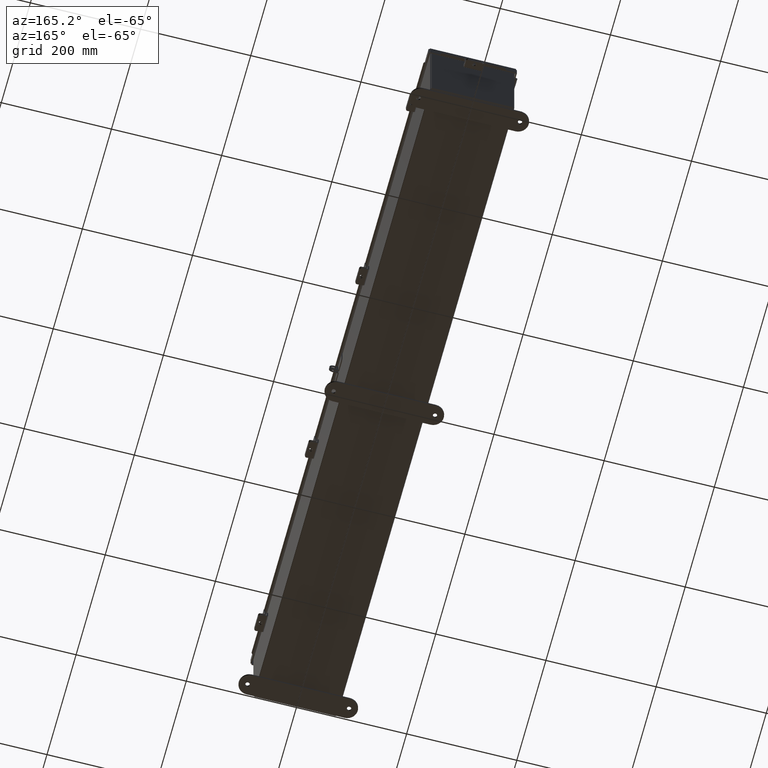
[diagram: clean part render]
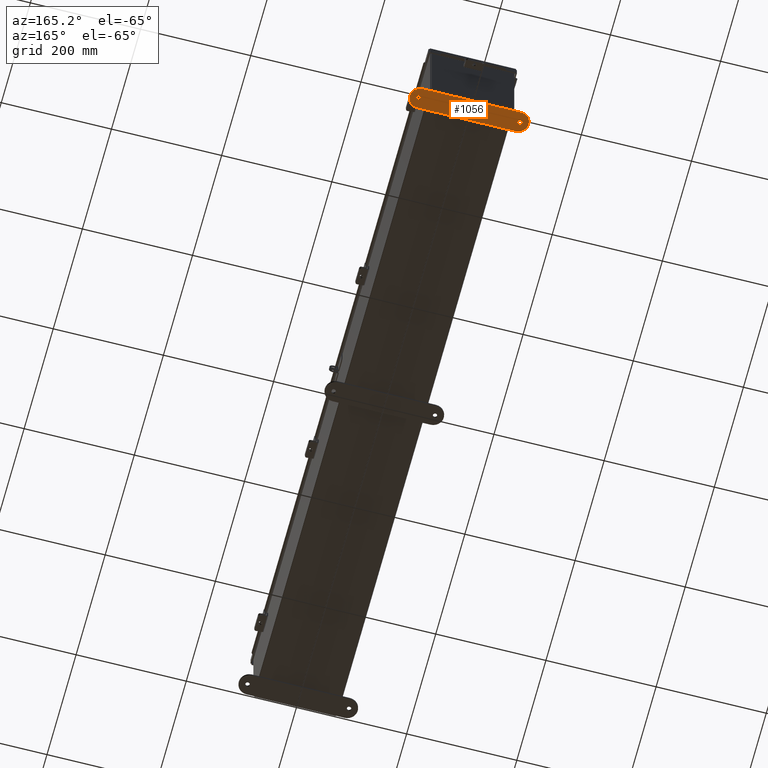
[diagram: same view with one face highlighted and labeled with its STEP entity id]
A machine part, auxiliary view. The second image highlights one B-rep face of the part: STEP entity #1056.
In plain terms, the highlighted planar face has unit normal (0, 0, 1).
Its self-contained STEP definition (entity closure, byte-faithful):
#1056 = ADVANCED_FACE ( 'NONE', ( #13943, #7277, #6414 ), #28019, .F. ) ;
#1322 = DIRECTION ( 'NONE',  ( 0.0000000000000000000, 0.0000000000000000000, 1.000000000000000000 ) ) ;
#1604 = CIRCLE ( 'NONE', #2613, 0.7500000000000010000 ) ;
#2015 = CARTESIAN_POINT ( 'NONE',  ( 4.250000000000000900, 0.4120940649496110900, 0.0000000000000000000 ) ) ;
#2552 = VERTEX_POINT ( 'NONE', #20107 ) ;
#2568 = CARTESIAN_POINT ( 'NONE',  ( 3.500000000000000000, 0.4120940649496110900, 0.0000000000000000000 ) ) ;
#2613 = AXIS2_PLACEMENT_3D ( 'NONE', #6046, #25940, #8880 ) ;
#2972 = CIRCLE ( 'NONE', #25456, 0.1564999999999992800 ) ;
#3594 = VERTEX_POINT ( 'NONE', #34502 ) ;
#4854 = VECTOR ( 'NONE', #13357, 39.37007874015748100 ) ;
#5367 = CARTESIAN_POINT ( 'NONE',  ( 3.625000000000000400, 0.4120940649496067100, 0.0000000000000000000 ) ) ;
#5418 = DIRECTION ( 'NONE',  ( -1.000000000000000000, 0.0000000000000000000, 0.0000000000000000000 ) ) ;
#6046 = CARTESIAN_POINT ( 'NONE',  ( 3.500000000000000000, 0.4120940649496110900, 0.0000000000000000000 ) ) ;
#6414 = FACE_BOUND ( 'NONE', #22290, .T. ) ;
#6963 = ORIENTED_EDGE ( 'NONE', *, *, #8490, .F. ) ;
#7277 = FACE_BOUND ( 'NONE', #24081, .T. ) ;
#7288 = DIRECTION ( 'NONE',  ( -1.000000000000000000, -1.170791997284684700E-016, 0.0000000000000000000 ) ) ;
#8198 = DIRECTION ( 'NONE',  ( -1.000000000000000000, 0.0000000000000000000, 0.0000000000000000000 ) ) ;
#8490 = EDGE_CURVE ( 'NONE', #13827, #25999, #32790, .T. ) ;
#8545 = CIRCLE ( 'NONE', #17494, 0.1564999999999992800 ) ;
#8880 = DIRECTION ( 'NONE',  ( -1.000000000000000000, 0.0000000000000000000, 0.0000000000000000000 ) ) ;
#9381 = CARTESIAN_POINT ( 'NONE',  ( -3.499999999999998700, 1.162094064949611600, 0.0000000000000000000 ) ) ;
#9396 = ORIENTED_EDGE ( 'NONE', *, *, #35020, .T. ) ;
#10519 = CARTESIAN_POINT ( 'NONE',  ( -3.499999999999998700, -0.3379059350503894100, 0.0000000000000000000 ) ) ;
#11016 = ORIENTED_EDGE ( 'NONE', *, *, #34580, .T. ) ;
#11172 = DIRECTION ( 'NONE',  ( 0.0000000000000000000, 0.0000000000000000000, -1.000000000000000000 ) ) ;
#11921 = CIRCLE ( 'NONE', #25010, 0.7500000000000010000 ) ;
#12362 = DIRECTION ( 'NONE',  ( 0.0000000000000000000, 0.0000000000000000000, 1.000000000000000000 ) ) ;
#12564 = DIRECTION ( 'NONE',  ( 0.0000000000000000000, 0.0000000000000000000, 1.000000000000000000 ) ) ;
#12627 = DIRECTION ( 'NONE',  ( 0.0000000000000000000, 0.0000000000000000000, 1.000000000000000000 ) ) ;
#12663 = VECTOR ( 'NONE', #7288, 39.37007874015748100 ) ;
#13357 = DIRECTION ( 'NONE',  ( 1.000000000000000000, -1.170791997284684700E-016, 0.0000000000000000000 ) ) ;
#13639 = EDGE_LOOP ( 'NONE', ( #35675, #27613, #9396, #28541, #15822 ) ) ;
#13799 = CARTESIAN_POINT ( 'NONE',  ( 3.499999999999998700, 1.162094064949611600, 0.0000000000000000000 ) ) ;
#13827 = VERTEX_POINT ( 'NONE', #17760 ) ;
#13943 = FACE_OUTER_BOUND ( 'NONE', #13639, .T. ) ;
#15822 = ORIENTED_EDGE ( 'NONE', *, *, #32845, .T. ) ;
#16329 = VERTEX_POINT ( 'NONE', #9381 ) ;
#17311 = ORIENTED_EDGE ( 'NONE', *, *, #27717, .T. ) ;
#17494 = AXIS2_PLACEMENT_3D ( 'NONE', #5367, #25241, #8198 ) ;
#17760 = CARTESIAN_POINT ( 'NONE',  ( -3.781499999999999400, 0.4120940649496067100, 0.0000000000000000000 ) ) ;
#17830 = VERTEX_POINT ( 'NONE', #26324 ) ;
#18080 = AXIS2_PLACEMENT_3D ( 'NONE', #28231, #11172, #31111 ) ;
#18371 = CARTESIAN_POINT ( 'NONE',  ( 3.500000000000000000, 0.4120940649496110900, 0.0000000000000000000 ) ) ;
#19393 = CIRCLE ( 'NONE', #18080, 0.1564999999999992800 ) ;
#19504 = CIRCLE ( 'NONE', #26905, 0.7499999999999998900 ) ;
#20107 = CARTESIAN_POINT ( 'NONE',  ( 3.499999999999998700, -0.3379059350503894100, 0.0000000000000000000 ) ) ;
#21230 = DIRECTION ( 'NONE',  ( -1.000000000000000000, 0.0000000000000000000, 0.0000000000000000000 ) ) ;
#22290 = EDGE_LOOP ( 'NONE', ( #11016, #17311 ) ) ;
#22434 = DIRECTION ( 'NONE',  ( 0.0000000000000000000, 0.0000000000000000000, -1.000000000000000000 ) ) ;
#22593 = AXIS2_PLACEMENT_3D ( 'NONE', #29644, #12564, #32507 ) ;
#22925 = AXIS2_PLACEMENT_3D ( 'NONE', #2568, #22434, #5418 ) ;
#24081 = EDGE_LOOP ( 'NONE', ( #31039, #6963 ) ) ;
#25010 = AXIS2_PLACEMENT_3D ( 'NONE', #18371, #1322, #21230 ) ;
#25241 = DIRECTION ( 'NONE',  ( 0.0000000000000000000, 0.0000000000000000000, -1.000000000000000000 ) ) ;
#25456 = AXIS2_PLACEMENT_3D ( 'NONE', #29419, #12362, #32294 ) ;
#25940 = DIRECTION ( 'NONE',  ( 0.0000000000000000000, 0.0000000000000000000, 1.000000000000000000 ) ) ;
#25999 = VERTEX_POINT ( 'NONE', #33102 ) ;
#26324 = CARTESIAN_POINT ( 'NONE',  ( 3.781499999999999400, 0.4120940649496067100, 0.0000000000000000000 ) ) ;
#26905 = AXIS2_PLACEMENT_3D ( 'NONE', #29694, #12627, #32565 ) ;
#26918 = LINE ( 'NONE', #27199, #12663 ) ;
#27199 = CARTESIAN_POINT ( 'NONE',  ( -3.499999999999998700, 1.162094064949611600, 0.0000000000000000000 ) ) ;
#27522 = LINE ( 'NONE', #10519, #4854 ) ;
#27613 = ORIENTED_EDGE ( 'NONE', *, *, #33120, .T. ) ;
#27717 = EDGE_CURVE ( 'NONE', #36295, #17830, #8545, .T. ) ;
#28019 = PLANE ( 'NONE',  #22925 ) ;
#28231 = CARTESIAN_POINT ( 'NONE',  ( 3.625000000000000400, 0.4120940649496067100, 0.0000000000000000000 ) ) ;
#28541 = ORIENTED_EDGE ( 'NONE', *, *, #33118, .T. ) ;
#29419 = CARTESIAN_POINT ( 'NONE',  ( -3.625000000000000400, 0.4120940649496067100, 0.0000000000000000000 ) ) ;
#29644 = CARTESIAN_POINT ( 'NONE',  ( -3.625000000000000400, 0.4120940649496067100, 0.0000000000000000000 ) ) ;
#29694 = CARTESIAN_POINT ( 'NONE',  ( -3.499999999999998700, 0.4120940649496110900, 0.0000000000000000000 ) ) ;
#30371 = CARTESIAN_POINT ( 'NONE',  ( 3.468500000000001000, 0.4120940649496067100, 0.0000000000000000000 ) ) ;
#31039 = ORIENTED_EDGE ( 'NONE', *, *, #31510, .F. ) ;
#31111 = DIRECTION ( 'NONE',  ( -1.000000000000000000, 0.0000000000000000000, 0.0000000000000000000 ) ) ;
#31369 = EDGE_CURVE ( 'NONE', #2552, #32253, #1604, .T. ) ;
#31510 = EDGE_CURVE ( 'NONE', #25999, #13827, #2972, .T. ) ;
#32253 = VERTEX_POINT ( 'NONE', #2015 ) ;
#32294 = DIRECTION ( 'NONE',  ( 1.000000000000000000, 0.0000000000000000000, 0.0000000000000000000 ) ) ;
#32507 = DIRECTION ( 'NONE',  ( 1.000000000000000000, 0.0000000000000000000, 0.0000000000000000000 ) ) ;
#32565 = DIRECTION ( 'NONE',  ( 1.000000000000000000, 0.0000000000000000000, 0.0000000000000000000 ) ) ;
#32790 = CIRCLE ( 'NONE', #22593, 0.1564999999999992800 ) ;
#32845 = EDGE_CURVE ( 'NONE', #3594, #2552, #27522, .T. ) ;
#33102 = CARTESIAN_POINT ( 'NONE',  ( -3.468500000000001000, 0.4120940649496067100, 0.0000000000000000000 ) ) ;
#33118 = EDGE_CURVE ( 'NONE', #16329, #3594, #19504, .T. ) ;
#33120 = EDGE_CURVE ( 'NONE', #32253, #35818, #11921, .T. ) ;
#34502 = CARTESIAN_POINT ( 'NONE',  ( -3.499999999999998700, -0.3379059350503894100, 0.0000000000000000000 ) ) ;
#34580 = EDGE_CURVE ( 'NONE', #17830, #36295, #19393, .T. ) ;
#35020 = EDGE_CURVE ( 'NONE', #35818, #16329, #26918, .T. ) ;
#35675 = ORIENTED_EDGE ( 'NONE', *, *, #31369, .T. ) ;
#35818 = VERTEX_POINT ( 'NONE', #13799 ) ;
#36295 = VERTEX_POINT ( 'NONE', #30371 ) ;